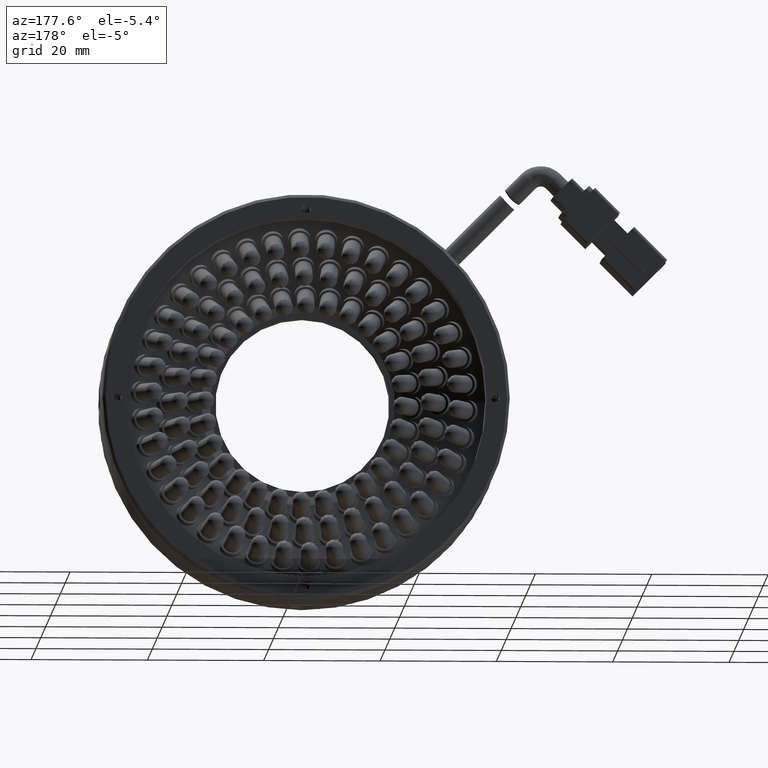
[diagram: clean part render]
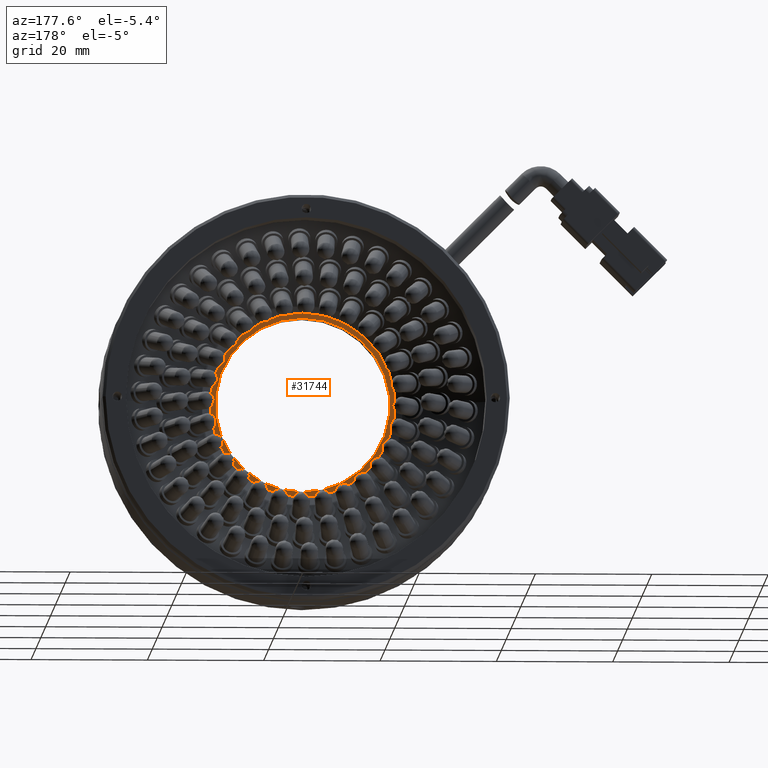
[diagram: same view with one face highlighted and labeled with its STEP entity id]
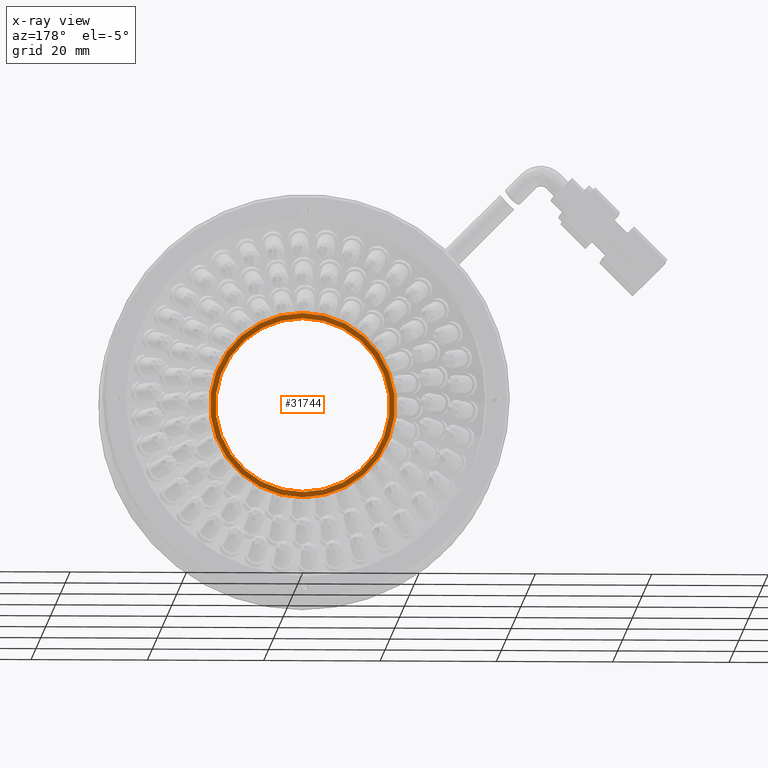
[diagram: x-ray of the same camera — body ghosted, the highlighted face saturated]
A machine part, auxiliary view. The second image highlights one B-rep face of the part: STEP entity #31744.
The next image is the same camera in x-ray: the body ghosted, the highlighted face saturated — about 0% of this face is hidden behind the body in this view.
In plain terms, the highlighted planar face has unit normal (-0, 1, 0).
Its self-contained STEP definition (entity closure, byte-faithful):
#3395 = PLANE ( 'NONE',  #32297 ) ;
#4147 = CARTESIAN_POINT ( 'NONE',  ( -3.499229287090536800, 36.01850366302610200, -15.90000000000001100 ) ) ;
#6270 = DIRECTION ( 'NONE',  ( 0.0000000000000000000, -1.000000000000000000, 0.0000000000000000000 ) ) ;
#7378 = EDGE_LOOP ( 'NONE', ( #79698, #47448 ) ) ;
#8734 = EDGE_LOOP ( 'NONE', ( #23288, #47816 ) ) ;
#9425 = EDGE_CURVE ( 'NONE', #27749, #84730, #41468, .T. ) ;
#21839 = VERTEX_POINT ( 'NONE', #4147 ) ;
#23288 = ORIENTED_EDGE ( 'NONE', *, *, #25611, .T. ) ;
#23524 = CARTESIAN_POINT ( 'NONE',  ( -3.499229287090538600, 36.01850366302610200, 15.00000000000001400 ) ) ;
#24699 = AXIS2_PLACEMENT_3D ( 'NONE', #48183, #6270, #55148 ) ;
#24820 = CARTESIAN_POINT ( 'NONE',  ( -18.49922928709054700, 36.01850366302610200, 0.0000000000000000000 ) ) ;
#25036 = DIRECTION ( 'NONE',  ( -0.0000000000000000000, 1.000000000000000000, -0.0000000000000000000 ) ) ;
#25611 = EDGE_CURVE ( 'NONE', #90237, #21839, #69959, .T. ) ;
#27549 = CARTESIAN_POINT ( 'NONE',  ( -3.499229287090538600, 36.01850366302610200, 15.90000000000001100 ) ) ;
#27657 = CARTESIAN_POINT ( 'NONE',  ( -3.499229287090536800, 36.01850366302610200, -15.00000000000001400 ) ) ;
#27749 = VERTEX_POINT ( 'NONE', #27657 ) ;
#28672 = EDGE_CURVE ( 'NONE', #21839, #90237, #62141, .T. ) ;
#31744 = ADVANCED_FACE ( 'NONE', ( #90619, #72005 ), #3395, .T. ) ;
#31869 = DIRECTION ( 'NONE',  ( 0.0000000000000000000, -0.0000000000000000000, 1.000000000000000000 ) ) ;
#32006 = CARTESIAN_POINT ( 'NONE',  ( -3.499229287090538600, 36.01850366302610200, 0.0000000000000000000 ) ) ;
#32297 = AXIS2_PLACEMENT_3D ( 'NONE', #24820, #73743, #31869 ) ;
#38988 = DIRECTION ( 'NONE',  ( 0.0000000000000000000, 0.0000000000000000000, 1.000000000000000000 ) ) ;
#40462 = CARTESIAN_POINT ( 'NONE',  ( -3.499229287090538600, 36.01850366302610200, 0.0000000000000000000 ) ) ;
#41468 = CIRCLE ( 'NONE', #24699, 15.00000000000001400 ) ;
#47448 = ORIENTED_EDGE ( 'NONE', *, *, #9425, .T. ) ;
#47517 = DIRECTION ( 'NONE',  ( 0.0000000000000000000, 0.0000000000000000000, 1.000000000000000000 ) ) ;
#47816 = ORIENTED_EDGE ( 'NONE', *, *, #28672, .T. ) ;
#48183 = CARTESIAN_POINT ( 'NONE',  ( -3.499229287090538600, 36.01850366302610200, 0.0000000000000000000 ) ) ;
#52437 = CIRCLE ( 'NONE', #70695, 15.00000000000001400 ) ;
#53286 = AXIS2_PLACEMENT_3D ( 'NONE', #66896, #25036, #73976 ) ;
#55148 = DIRECTION ( 'NONE',  ( 0.0000000000000000000, 0.0000000000000000000, 1.000000000000000000 ) ) ;
#62141 = CIRCLE ( 'NONE', #53286, 15.90000000000001100 ) ;
#66896 = CARTESIAN_POINT ( 'NONE',  ( -3.499229287090538600, 36.01850366302610200, 0.0000000000000000000 ) ) ;
#69959 = CIRCLE ( 'NONE', #77552, 15.90000000000001100 ) ;
#70695 = AXIS2_PLACEMENT_3D ( 'NONE', #40462, #89418, #47517 ) ;
#72005 = FACE_OUTER_BOUND ( 'NONE', #8734, .T. ) ;
#73743 = DIRECTION ( 'NONE',  ( -0.0000000000000000000, 1.000000000000000000, 0.0000000000000000000 ) ) ;
#73976 = DIRECTION ( 'NONE',  ( 0.0000000000000000000, 0.0000000000000000000, 1.000000000000000000 ) ) ;
#77552 = AXIS2_PLACEMENT_3D ( 'NONE', #32006, #80889, #38988 ) ;
#78613 = EDGE_CURVE ( 'NONE', #84730, #27749, #52437, .T. ) ;
#79698 = ORIENTED_EDGE ( 'NONE', *, *, #78613, .T. ) ;
#80889 = DIRECTION ( 'NONE',  ( -0.0000000000000000000, 1.000000000000000000, -0.0000000000000000000 ) ) ;
#84730 = VERTEX_POINT ( 'NONE', #23524 ) ;
#89418 = DIRECTION ( 'NONE',  ( 0.0000000000000000000, -1.000000000000000000, 0.0000000000000000000 ) ) ;
#90237 = VERTEX_POINT ( 'NONE', #27549 ) ;
#90619 = FACE_BOUND ( 'NONE', #7378, .T. ) ;